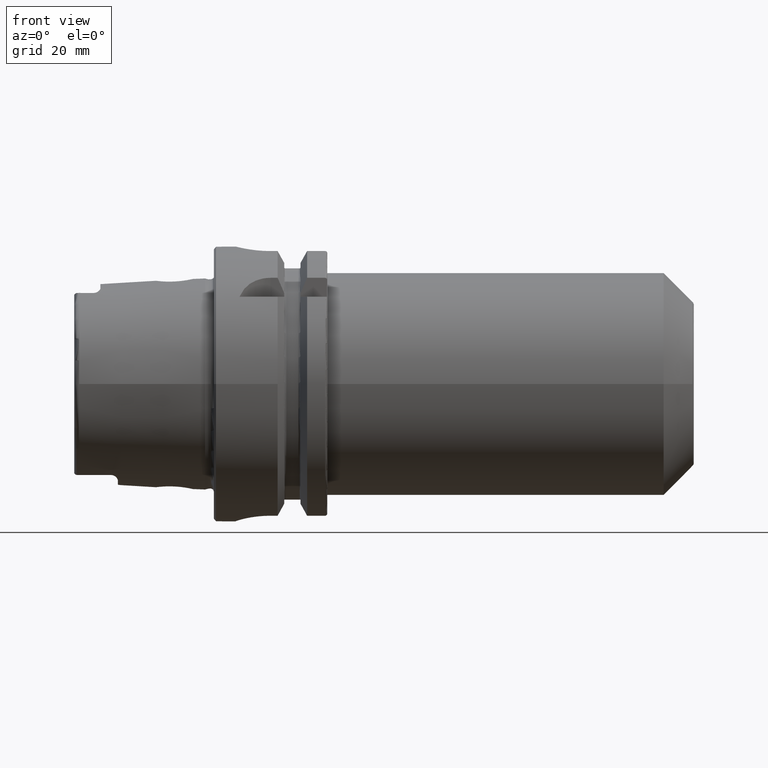
[diagram: clean part render]
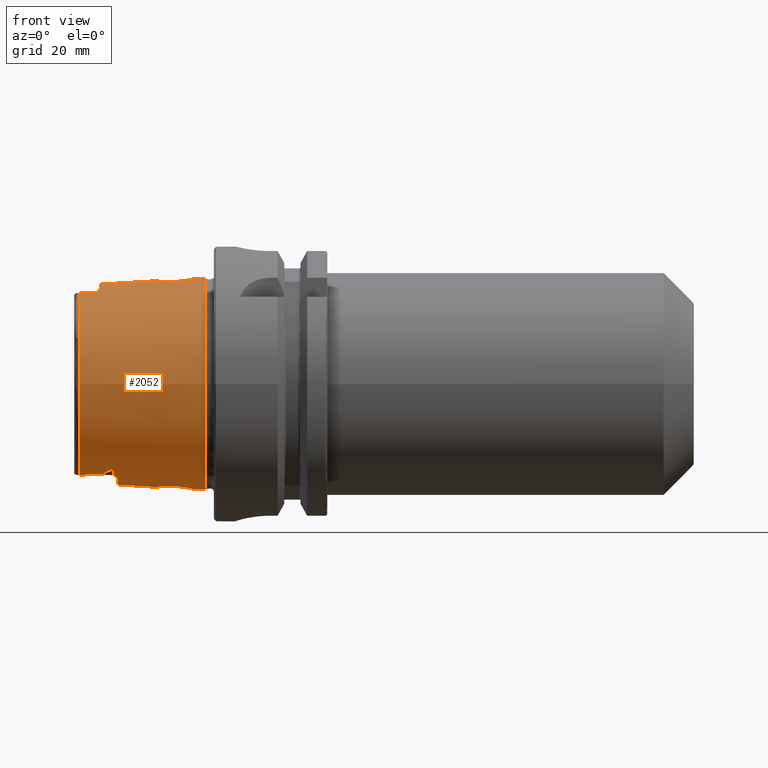
[diagram: same view with one face highlighted and labeled with its STEP entity id]
A machine part, front view. The second image highlights one B-rep face of the part: STEP entity #2052.
In plain terms, the highlighted conical surface has half-angle 2.868 deg.
Its self-contained STEP definition (entity closure, byte-faithful):
#15=(
BOUNDED_CURVE()
B_SPLINE_CURVE(2,(#3880,#3881,#3882),.UNSPECIFIED.,.F.,.F.)
B_SPLINE_CURVE_WITH_KNOTS((3,3),(0.409626932432081,0.704053423593105),
 .UNSPECIFIED.)
CURVE()
GEOMETRIC_REPRESENTATION_ITEM()
RATIONAL_B_SPLINE_CURVE((1.00336468859939,1.00336468859939,1.00162640098087))
REPRESENTATION_ITEM('')
);
#16=(
BOUNDED_CURVE()
B_SPLINE_CURVE(2,(#3947,#3948,#3949),.UNSPECIFIED.,.F.,.F.)
B_SPLINE_CURVE_WITH_KNOTS((3,3),(0.115200441271059,0.409626932432082),
 .UNSPECIFIED.)
CURVE()
GEOMETRIC_REPRESENTATION_ITEM()
RATIONAL_B_SPLINE_CURVE((1.00162640098087,1.00336468859939,1.00336468859939))
REPRESENTATION_ITEM('')
);
#102=FACE_BOUND('',#388,.T.);
#103=FACE_BOUND('',#389,.T.);
#118=B_SPLINE_CURVE_WITH_KNOTS('',3,(#3566,#3567,#3568,#3569,#3570,#3571,
#3572,#3573,#3574,#3575,#3576,#3577,#3578,#3579,#3580,#3581,#3582,#3583),
 .UNSPECIFIED.,.F.,.F.,(4,2,2,2,2,2,2,2,4),(0.937345209538582,1.02529838322405,
1.19618144709472,1.36706451096539,1.42680307053412,1.48654163010284,1.50096970945234,
1.50818374912708,1.51539778880183),.UNSPECIFIED.);
#121=B_SPLINE_CURVE_WITH_KNOTS('',3,(#3634,#3635,#3636,#3637,#3638,#3639,
#3640,#3641,#3642,#3643,#3644,#3645,#3646,#3647,#3648,#3649,#3650,#3651),
 .UNSPECIFIED.,.F.,.F.,(4,2,2,2,2,2,2,2,4),(1.51539778880184,1.52261182847659,
1.52982586815134,1.54425394750083,1.60399250706955,1.66373106663827,1.83461413050895,
2.00549719437962,2.0934503680651),.UNSPECIFIED.);
#123=B_SPLINE_CURVE_WITH_KNOTS('',3,(#3689,#3690,#3691,#3692,#3693,#3694,
#3695,#3696),.UNSPECIFIED.,.F.,.F.,(4,2,2,4),(1.77153596711132,1.83492838643131,
2.00584149209106,2.09371558288111),.UNSPECIFIED.);
#124=B_SPLINE_CURVE_WITH_KNOTS('',3,(#3713,#3714,#3715,#3716,#3717,#3718,
#3719,#3720),.UNSPECIFIED.,.F.,.F.,(4,2,2,4),(0.937604543168422,1.02547863395848,
1.19639173961822,1.25978415893822),.UNSPECIFIED.);
#128=B_SPLINE_CURVE_WITH_KNOTS('',3,(#3852,#3853,#3854,#3855,#3856,#3857,
#3858,#3859,#3860,#3861,#3862,#3863,#3864,#3865,#3866,#3867,#3868,#3869,
#3870,#3871,#3872),.UNSPECIFIED.,.T.,.F.,(4,1,1,1,1,1,1,1,1,1,1,1,1,1,1,
1,1,1,4),(-2.26557970640445,-2.10375258451842,-1.94192546263239,-1.86101190168937,
-1.78009834074636,-1.61827121886032,-1.45644409697429,-1.37553053603127,
-1.29461697508826,-1.18673222716424,-1.07884747924022,-0.970962731316194,
-0.863077983392173,-0.755193235468151,-0.647308487544129,-0.485481365658097,
-0.323654243772065,-0.161827121886032,0.),.UNSPECIFIED.);
#129=B_SPLINE_CURVE_WITH_KNOTS('',3,(#3884,#3885,#3886,#3887,#3888,#3889,
#3890,#3891,#3892,#3893,#3894,#3895,#3896,#3897,#3898,#3899,#3900,#3901),
 .UNSPECIFIED.,.F.,.F.,(4,2,2,2,2,2,2,2,4),(0.,0.0903555875079969,0.135533381261995,
0.180711175015994,0.191679253692351,0.19716329303053,0.202647332368709,
0.208141673454593,0.210684760739668),.UNSPECIFIED.);
#130=B_SPLINE_CURVE_WITH_KNOTS('',3,(#3903,#3904,#3905,#3906,#3907,#3908,
#3909,#3910,#3911,#3912),.UNSPECIFIED.,.F.,.F.,(4,2,2,2,4),(0.278659319230644,
0.333918541832918,0.442805459609059,0.482035165304725,0.500954004489182),
 .UNSPECIFIED.);
#131=B_SPLINE_CURVE_WITH_KNOTS('',3,(#3916,#3917,#3918,#3919,#3920,#3921,
#3922,#3923,#3924,#3925,#3926,#3927),.UNSPECIFIED.,.F.,.F.,(4,2,2,2,2,4),
(0.500954004487676,0.50386398744684,0.528331134037123,0.580812359186529,
0.712749669755937,0.726249722962502),.UNSPECIFIED.);
#132=B_SPLINE_CURVE_WITH_KNOTS('',3,(#3929,#3930,#3931,#3932,#3933,#3934,
#3935,#3936,#3937,#3938,#3939,#3940,#3941,#3942,#3943,#3944,#3945,#3946),
 .UNSPECIFIED.,.F.,.F.,(4,2,2,2,2,2,2,2,4),(0.599581967500703,0.602125054785784,
0.607619395871668,0.613103435209847,0.618587474548027,0.629555553224386,
0.674733346978385,0.719911140732385,0.810266728240384),.UNSPECIFIED.);
#133=B_SPLINE_CURVE_WITH_KNOTS('',3,(#3952,#3953,#3954,#3955,#3956,#3957,
#3958,#3959,#3960,#3961,#3962,#3963,#3964,#3965),.UNSPECIFIED.,.F.,.F.,
(4,2,2,2,2,2,4),(0.612787130114313,0.692070205833102,0.846913877835571,
0.923866042650838,0.97973233720279,1.02631946127952,1.05465853457734),
 .UNSPECIFIED.);
#134=B_SPLINE_CURVE_WITH_KNOTS('',3,(#3968,#3969,#3970,#3971,#3972,#3973,
#3974,#3975,#3976,#3977,#3978,#3979,#3980,#3981),.UNSPECIFIED.,.F.,.F.,
(4,2,2,2,2,2,4),(0.413162960284885,0.443293122422243,0.485069563612126,
0.532728756474865,0.604908335246701,0.737193690325506,0.813919818316776),
 .UNSPECIFIED.);
#135=B_SPLINE_CURVE_WITH_KNOTS('',3,(#3984,#3985,#3986,#3987,#3988,#3989,
#3990,#3991,#3992,#3993,#3994,#3995,#3996,#3997,#3998,#3999,#4000,#4001,
#4002,#4003,#4004),.UNSPECIFIED.,.T.,.F.,(4,1,1,1,1,1,1,1,1,1,1,1,1,1,1,
1,1,1,4),(-2.26557970640445,-2.10375258451842,-1.94192546263239,-1.78009834074636,
-1.61827121886032,-1.45644409697429,-1.37553053603127,-1.29461697508826,
-1.18673222716424,-1.07884747924022,-1.0249051052782,-0.970962731316194,
-0.755193235468151,-0.647308487544129,-0.485481365658097,-0.404567804715081,
-0.323654243772065,-0.161827121886032,0.),.UNSPECIFIED.);
#257=FACE_OUTER_BOUND('',#387,.T.);
#387=EDGE_LOOP('',(#1499,#1500,#1501,#1502,#1503,#1504,#1505,#1506,#1507,
#1508,#1509,#1510,#1511,#1512,#1513,#1514,#1515,#1516,#1517,#1518));
#388=EDGE_LOOP('',(#1519));
#389=EDGE_LOOP('',(#1520));
#522=LINE('',#3877,#634);
#634=VECTOR('',#2577,23.4974838444284);
#734=CIRCLE('',#2228,24.2204308617234);
#735=CIRCLE('',#2229,22.7745368271334);
#736=CIRCLE('',#2230,23.2184268537074);
#737=CIRCLE('',#2231,22.7745368271334);
#738=CIRCLE('',#2232,23.0180260521042);
#739=CIRCLE('',#2233,22.7745368271334);
#862=VERTEX_POINT('',#3563);
#863=VERTEX_POINT('',#3565);
#873=VERTEX_POINT('',#3620);
#874=VERTEX_POINT('',#3633);
#884=VERTEX_POINT('',#3675);
#885=VERTEX_POINT('',#3688);
#891=VERTEX_POINT('',#3710);
#892=VERTEX_POINT('',#3712);
#895=VERTEX_POINT('',#3823);
#898=VERTEX_POINT('',#3874);
#899=VERTEX_POINT('',#3876);
#900=VERTEX_POINT('',#3879);
#901=VERTEX_POINT('',#3883);
#902=VERTEX_POINT('',#3902);
#903=VERTEX_POINT('',#3913);
#904=VERTEX_POINT('',#3915);
#905=VERTEX_POINT('',#3928);
#906=VERTEX_POINT('',#3951);
#907=VERTEX_POINT('',#3966);
#908=VERTEX_POINT('',#3983);
#1085=EDGE_CURVE('',#863,#862,#118,.T.);
#1099=EDGE_CURVE('',#874,#873,#121,.T.);
#1112=EDGE_CURVE('',#885,#884,#123,.T.);
#1120=EDGE_CURVE('',#892,#891,#124,.T.);
#1128=EDGE_CURVE('',#895,#895,#128,.T.);
#1129=EDGE_CURVE('',#898,#898,#734,.T.);
#1130=EDGE_CURVE('',#898,#899,#522,.T.);
#1131=EDGE_CURVE('',#899,#863,#735,.T.);
#1132=EDGE_CURVE('',#862,#900,#15,.T.);
#1133=EDGE_CURVE('',#901,#900,#129,.T.);
#1134=EDGE_CURVE('',#902,#901,#130,.T.);
#1135=EDGE_CURVE('',#902,#903,#736,.T.);
#1136=EDGE_CURVE('',#904,#903,#131,.T.);
#1137=EDGE_CURVE('',#905,#904,#132,.T.);
#1138=EDGE_CURVE('',#905,#874,#16,.T.);
#1139=EDGE_CURVE('',#873,#892,#737,.T.);
#1140=EDGE_CURVE('',#906,#891,#133,.T.);
#1141=EDGE_CURVE('',#906,#907,#738,.T.);
#1142=EDGE_CURVE('',#885,#907,#134,.T.);
#1143=EDGE_CURVE('',#884,#899,#739,.T.);
#1144=EDGE_CURVE('',#908,#908,#135,.T.);
#1499=ORIENTED_EDGE('',*,*,#1129,.F.);
#1500=ORIENTED_EDGE('',*,*,#1130,.T.);
#1501=ORIENTED_EDGE('',*,*,#1131,.T.);
#1502=ORIENTED_EDGE('',*,*,#1085,.T.);
#1503=ORIENTED_EDGE('',*,*,#1132,.T.);
#1504=ORIENTED_EDGE('',*,*,#1133,.F.);
#1505=ORIENTED_EDGE('',*,*,#1134,.F.);
#1506=ORIENTED_EDGE('',*,*,#1135,.T.);
#1507=ORIENTED_EDGE('',*,*,#1136,.F.);
#1508=ORIENTED_EDGE('',*,*,#1137,.F.);
#1509=ORIENTED_EDGE('',*,*,#1138,.T.);
#1510=ORIENTED_EDGE('',*,*,#1099,.T.);
#1511=ORIENTED_EDGE('',*,*,#1139,.T.);
#1512=ORIENTED_EDGE('',*,*,#1120,.T.);
#1513=ORIENTED_EDGE('',*,*,#1140,.F.);
#1514=ORIENTED_EDGE('',*,*,#1141,.T.);
#1515=ORIENTED_EDGE('',*,*,#1142,.F.);
#1516=ORIENTED_EDGE('',*,*,#1112,.T.);
#1517=ORIENTED_EDGE('',*,*,#1143,.T.);
#1518=ORIENTED_EDGE('',*,*,#1130,.F.);
#1519=ORIENTED_EDGE('',*,*,#1144,.F.);
#1520=ORIENTED_EDGE('',*,*,#1128,.F.);
#2009=CONICAL_SURFACE('',#2227,23.4974838444284,0.0500583457465973);
#2052=ADVANCED_FACE('',(#257,#102,#103),#2009,.T.);
#2227=AXIS2_PLACEMENT_3D('',#3873,#2573,#2574);
#2228=AXIS2_PLACEMENT_3D('',#3875,#2575,#2576);
#2229=AXIS2_PLACEMENT_3D('',#3878,#2578,#2579);
#2230=AXIS2_PLACEMENT_3D('',#3914,#2580,#2581);
#2231=AXIS2_PLACEMENT_3D('',#3950,#2582,#2583);
#2232=AXIS2_PLACEMENT_3D('',#3967,#2584,#2585);
#2233=AXIS2_PLACEMENT_3D('',#3982,#2586,#2587);
#2573=DIRECTION('center_axis',(1.,0.,0.));
#2574=DIRECTION('ref_axis',(0.,1.,0.));
#2575=DIRECTION('center_axis',(1.,0.,0.));
#2576=DIRECTION('ref_axis',(0.,0.,-1.));
#2577=DIRECTION('',(-0.998747342623037,0.0500374420151821,6.1278193201414E-18));
#2578=DIRECTION('center_axis',(1.,0.,0.));
#2579=DIRECTION('ref_axis',(0.,0.,-1.));
#2580=DIRECTION('center_axis',(1.,0.,0.));
#2581=DIRECTION('ref_axis',(0.,1.,0.));
#2582=DIRECTION('center_axis',(1.,0.,0.));
#2583=DIRECTION('ref_axis',(0.,0.,-1.));
#2584=DIRECTION('center_axis',(1.,0.,0.));
#2585=DIRECTION('ref_axis',(0.,1.,0.));
#2586=DIRECTION('center_axis',(1.,0.,0.));
#2587=DIRECTION('ref_axis',(0.,0.,-1.));
#3563=CARTESIAN_POINT('',(-25.0978148584663,-10.4556386714692,-20.5570425901345));
#3565=CARTESIAN_POINT('',(-30.8600449304182,-9.1175788960984,-20.8698175067219));
#3566=CARTESIAN_POINT('Ctrl Pts',(-30.8600449304182,-9.11757889609839,-20.8698175067219));
#3567=CARTESIAN_POINT('Ctrl Pts',(-30.5458909643235,-9.15590567779842,-20.8702489912062));
#3568=CARTESIAN_POINT('Ctrl Pts',(-30.2333885582947,-9.19553638844306,-20.8699331931734));
#3569=CARTESIAN_POINT('Ctrl Pts',(-29.3200764392134,-9.31683719872071,-20.8662835753638));
#3570=CARTESIAN_POINT('Ctrl Pts',(-28.7253632733503,-9.40260250516231,-20.8605355436413));
#3571=CARTESIAN_POINT('Ctrl Pts',(-27.5600080230793,-9.59491882494623,-20.8370744460606));
#3572=CARTESIAN_POINT('Ctrl Pts',(-26.9889879780948,-9.69930871486833,-20.8204848534175));
#3573=CARTESIAN_POINT('Ctrl Pts',(-26.243078447761,-9.87995363103469,-20.7763753921414));
#3574=CARTESIAN_POINT('Ctrl Pts',(-26.0321916389,-9.93536599911181,-20.7617058242075));
#3575=CARTESIAN_POINT('Ctrl Pts',(-25.6226314158803,-10.0671936374524,-20.7209199758996));
#3576=CARTESIAN_POINT('Ctrl Pts',(-25.4220827984544,-10.138547720478,-20.6974983203461));
#3577=CARTESIAN_POINT('Ctrl Pts',(-25.2208246412483,-10.2713306216733,-20.6428847988051));
#3578=CARTESIAN_POINT('Ctrl Pts',(-25.1803732229877,-10.3024924958121,-20.6296329719333));
#3579=CARTESIAN_POINT('Ctrl Pts',(-25.1342239230183,-10.3555186194877,-20.6056268137561));
#3580=CARTESIAN_POINT('Ctrl Pts',(-25.1212840412597,-10.3742534446523,-20.5969290505833));
#3581=CARTESIAN_POINT('Ctrl Pts',(-25.10307563401,-10.4135952575897,-20.5780886428205));
#3582=CARTESIAN_POINT('Ctrl Pts',(-25.0978148584663,-10.434204936409,-20.5679441285336));
#3583=CARTESIAN_POINT('Ctrl Pts',(-25.0978148584663,-10.4556386714692,-20.5570425901345));
#3620=CARTESIAN_POINT('',(-30.8600449304182,9.1175788960984,-20.8698175067219));
#3633=CARTESIAN_POINT('',(-25.0978148584663,10.4556386714692,-20.5570425901345));
#3634=CARTESIAN_POINT('Ctrl Pts',(-25.0978148584663,10.4556386714692,-20.5570425901345));
#3635=CARTESIAN_POINT('Ctrl Pts',(-25.0978148584663,10.434204936409,-20.5679441285336));
#3636=CARTESIAN_POINT('Ctrl Pts',(-25.1030756340098,10.4135952575897,-20.5780886428205));
#3637=CARTESIAN_POINT('Ctrl Pts',(-25.1212840412595,10.3742534446523,-20.5969290505833));
#3638=CARTESIAN_POINT('Ctrl Pts',(-25.1342239230183,10.3555186194877,-20.605626813756));
#3639=CARTESIAN_POINT('Ctrl Pts',(-25.1803732229877,10.3024924958122,-20.6296329719333));
#3640=CARTESIAN_POINT('Ctrl Pts',(-25.2208246412482,10.2713306216733,-20.6428847988051));
#3641=CARTESIAN_POINT('Ctrl Pts',(-25.4220827984543,10.138547720478,-20.6974983203461));
#3642=CARTESIAN_POINT('Ctrl Pts',(-25.6226314158802,10.0671936374525,-20.7209199758995));
#3643=CARTESIAN_POINT('Ctrl Pts',(-26.0321916388999,9.93536599911188,-20.7617058242075));
#3644=CARTESIAN_POINT('Ctrl Pts',(-26.2430784477608,9.8799536310347,-20.7763753921414));
#3645=CARTESIAN_POINT('Ctrl Pts',(-26.9889879780946,9.69930871486834,-20.8204848534175));
#3646=CARTESIAN_POINT('Ctrl Pts',(-27.5600080230791,9.59491882494626,-20.8370744460606));
#3647=CARTESIAN_POINT('Ctrl Pts',(-28.7253632733501,9.40260250516234,-20.8605355436413));
#3648=CARTESIAN_POINT('Ctrl Pts',(-29.3200764392133,9.31683719872073,-20.8662835753638));
#3649=CARTESIAN_POINT('Ctrl Pts',(-30.2333885582946,9.19553638844306,-20.8699331931734));
#3650=CARTESIAN_POINT('Ctrl Pts',(-30.5458909643235,9.15590567779843,-20.8702489912062));
#3651=CARTESIAN_POINT('Ctrl Pts',(-30.8600449304182,9.11757889609839,-20.8698175067219));
#3675=CARTESIAN_POINT('',(-30.8600449304182,-9.1175788960984,20.8698175067219));
#3688=CARTESIAN_POINT('',(-27.5000000000755,-9.61067758640857,20.8329168403914));
#3689=CARTESIAN_POINT('Ctrl Pts',(-27.500000000078,-9.61067758642201,20.8329168403892));
#3690=CARTESIAN_POINT('Ctrl Pts',(-27.7125737548958,-9.57148784129481,20.8392673030342));
#3691=CARTESIAN_POINT('Ctrl Pts',(-27.9270578144772,-9.53434241390281,20.8444654011212));
#3692=CARTESIAN_POINT('Ctrl Pts',(-28.7259960474271,-9.40250589525003,20.8605443506117));
#3693=CARTESIAN_POINT('Ctrl Pts',(-29.3208153495341,-9.3167323629879,20.8662898636256));
#3694=CARTESIAN_POINT('Ctrl Pts',(-30.2339565561897,-9.19546438357122,20.8699337533607));
#3695=CARTESIAN_POINT('Ctrl Pts',(-30.5461763429502,-9.15587086160794,20.8702485992441));
#3696=CARTESIAN_POINT('Ctrl Pts',(-30.8600449304182,-9.11757889609839,20.8698175067219));
#3710=CARTESIAN_POINT('',(-27.5000000000755,9.61067758640857,20.8329168403914));
#3712=CARTESIAN_POINT('',(-30.8600449304182,9.1175788960984,20.8698175067219));
#3713=CARTESIAN_POINT('Ctrl Pts',(-30.8600449304182,9.11757889609839,20.8698175067219));
#3714=CARTESIAN_POINT('Ctrl Pts',(-30.5461763429502,9.15587086160794,20.8702485992441));
#3715=CARTESIAN_POINT('Ctrl Pts',(-30.2339565561898,9.1954643835712,20.8699337533607));
#3716=CARTESIAN_POINT('Ctrl Pts',(-29.3208153495341,9.31673236298789,20.8662898636256));
#3717=CARTESIAN_POINT('Ctrl Pts',(-28.7259960474271,9.40250589525004,20.8605443506117));
#3718=CARTESIAN_POINT('Ctrl Pts',(-27.9270578144772,9.53434241390281,20.8444654011213));
#3719=CARTESIAN_POINT('Ctrl Pts',(-27.7125737548958,9.57148784129481,20.8392673030342));
#3720=CARTESIAN_POINT('Ctrl Pts',(-27.500000000078,9.61067758642201,20.8329168403892));
#3823=CARTESIAN_POINT('',(-9.02925407423461,4.24282684078987,-23.4881339907642));
#3852=CARTESIAN_POINT('Ctrl Pts',(-9.02925407423461,4.24282684078987,-23.4881339907642));
#3853=CARTESIAN_POINT('Ctrl Pts',(-8.41794937729802,4.24763962021184,-23.5183867686952));
#3854=CARTESIAN_POINT('Ctrl Pts',(-7.09719062335626,3.96214027152736,-23.6400391343347));
#3855=CARTESIAN_POINT('Ctrl Pts',(-5.85872384144614,2.97350456469995,-23.8514262488192));
#3856=CARTESIAN_POINT('Ctrl Pts',(-5.16063731756733,1.91003066646729,-23.9915936511341));
#3857=CARTESIAN_POINT('Ctrl Pts',(-4.71967908413408,0.667233683255142,-24.0892210412975));
#3858=CARTESIAN_POINT('Ctrl Pts',(-4.69487671176925,-0.887140287368457,
-24.0946920123011));
#3859=CARTESIAN_POINT('Ctrl Pts',(-5.41575081787389,-2.43754371827964,-23.9347651451498));
#3860=CARTESIAN_POINT('Ctrl Pts',(-6.27200380070453,-3.29839456985501,-23.7808774616528));
#3861=CARTESIAN_POINT('Ctrl Pts',(-7.16157899956841,-3.8911177348338,-23.6460473005722));
#3862=CARTESIAN_POINT('Ctrl Pts',(-8.32145673061719,-4.25090987526345,-23.5228217546797));
#3863=CARTESIAN_POINT('Ctrl Pts',(-9.55257943298201,-4.26858049401254,-23.456823819944));
#3864=CARTESIAN_POINT('Ctrl Pts',(-10.8313666496774,-3.90479981259957,-23.4573341216261));
#3865=CARTESIAN_POINT('Ctrl Pts',(-11.8961422246607,-3.1841113544275,-23.5146565929276));
#3866=CARTESIAN_POINT('Ctrl Pts',(-12.7003698798572,-2.21954630167764,-23.5891273633448));
#3867=CARTESIAN_POINT('Ctrl Pts',(-13.2855020445789,-0.774775065590821,
-23.6608303251767));
#3868=CARTESIAN_POINT('Ctrl Pts',(-13.2993151465013,0.893979362185892,-23.6627026291545));
#3869=CARTESIAN_POINT('Ctrl Pts',(-12.4532300975689,2.72994365265342,-23.5583564408809));
#3870=CARTESIAN_POINT('Ctrl Pts',(-10.9641321027099,3.91707089294868,-23.4490088113463));
#3871=CARTESIAN_POINT('Ctrl Pts',(-9.64055877117117,4.23801406136791,-23.4578812128331));
#3872=CARTESIAN_POINT('Ctrl Pts',(-9.02925407423461,4.24282684078988,-23.4881339907642));
#3873=CARTESIAN_POINT('Origin',(-16.4300224652091,0.,0.));
#3874=CARTESIAN_POINT('',(-2.,-24.2204308617234,-2.96614731287794E-15));
#3875=CARTESIAN_POINT('Origin',(-2.,0.,0.));
#3876=CARTESIAN_POINT('',(-30.8600449304182,-22.7745368271334,-2.78907636274124E-15));
#3877=CARTESIAN_POINT('',(-16.4300224652091,-23.4974838444284,-2.87761183780959E-15));
#3878=CARTESIAN_POINT('Origin',(-30.8600449304182,0.,0.));
#3879=CARTESIAN_POINT('',(-23.5,-12.1698923613067,-19.6851459107563));
#3880=CARTESIAN_POINT('Ctrl Pts',(-25.0978148584663,-10.4556386714692,-20.5570425901345));
#3881=CARTESIAN_POINT('Ctrl Pts',(-25.0978148584663,-11.3112805797553,-20.1218495128239));
#3882=CARTESIAN_POINT('Ctrl Pts',(-23.5,-12.1698923613067,-19.6851459107563));
#3883=CARTESIAN_POINT('',(-22.9409864229987,-10.5046262057925,-20.6533579718259));
#3884=CARTESIAN_POINT('Ctrl Pts',(-22.9409864229987,-10.5046262057925,-20.6533579718259));
#3885=CARTESIAN_POINT('Ctrl Pts',(-22.9409864229987,-10.7730829666602,-20.516816595398));
#3886=CARTESIAN_POINT('Ctrl Pts',(-22.9574206817668,-11.0623666606509,-20.3616089931375));
#3887=CARTESIAN_POINT('Ctrl Pts',(-23.0214299513488,-11.4761009466796,-20.1257517714531));
#3888=CARTESIAN_POINT('Ctrl Pts',(-23.0491283200772,-11.6099871059181,-20.0471312410654));
#3889=CARTESIAN_POINT('Ctrl Pts',(-23.1253497318037,-11.8635092488451,-19.8937049027563));
#3890=CARTESIAN_POINT('Ctrl Pts',(-23.1681553584466,-11.9845149642791,-19.8183788237048));
#3891=CARTESIAN_POINT('Ctrl Pts',(-23.2720205567489,-12.1145084587468,-19.7327054731899));
#3892=CARTESIAN_POINT('Ctrl Pts',(-23.2970638659452,-12.1405120406692,-19.7152346163683));
#3893=CARTESIAN_POINT('Ctrl Pts',(-23.340824213029,-12.1694983830269,-19.6947680043585));
#3894=CARTESIAN_POINT('Ctrl Pts',(-23.3564336502031,-12.1775072041959,-19.6888951705931));
#3895=CARTESIAN_POINT('Ctrl Pts',(-23.3894992563298,-12.1884299822762,-19.6801867490419));
#3896=CARTESIAN_POINT('Ctrl Pts',(-23.4069516148396,-12.191352087042,-19.6773469156348));
#3897=CARTESIAN_POINT('Ctrl Pts',(-23.4435003757557,-12.1903876993059,-19.675790353909));
#3898=CARTESIAN_POINT('Ctrl Pts',(-23.4609883159786,-12.1865341044229,-19.6771480362853));
#3899=CARTESIAN_POINT('Ctrl Pts',(-23.4852443648865,-12.1772664781571,-19.6814547071094));
#3900=CARTESIAN_POINT('Ctrl Pts',(-23.4927247382132,-12.1738018414638,-19.6831574869965));
#3901=CARTESIAN_POINT('Ctrl Pts',(-23.5,-12.1698923613067,-19.6851459107563));
#3902=CARTESIAN_POINT('',(-22.,-7.4031250016059,-22.0065691504051));
#3903=CARTESIAN_POINT('Ctrl Pts',(-22.,-7.4031250016064,-22.0065691504049));
#3904=CARTESIAN_POINT('Ctrl Pts',(-22.,-7.64154328791244,-21.9263639914758));
#3905=CARTESIAN_POINT('Ctrl Pts',(-22.0282316966018,-7.93106690411137,-21.8234540350138));
#3906=CARTESIAN_POINT('Ctrl Pts',(-22.2899989017396,-8.94727995671646,-21.421774019244));
#3907=CARTESIAN_POINT('Ctrl Pts',(-22.60775210997,-9.49253651928731,-21.1610368486918));
#3908=CARTESIAN_POINT('Ctrl Pts',(-22.8524785496019,-10.0580168739411,-20.8800894739587));
#3909=CARTESIAN_POINT('Ctrl Pts',(-22.8997008986804,-10.1907353571143,-20.8128334005565));
#3910=CARTESIAN_POINT('Ctrl Pts',(-22.9350020039233,-10.381785274935,-20.7158310407179));
#3911=CARTESIAN_POINT('Ctrl Pts',(-22.9409864229987,-10.4428555441716,-20.6847755123391));
#3912=CARTESIAN_POINT('Ctrl Pts',(-22.9409864229987,-10.5046262057925,-20.6533579718259));
#3913=CARTESIAN_POINT('',(-22.,7.4031250016059,-22.0065691504051));
#3914=CARTESIAN_POINT('Origin',(-22.,0.,0.));
#3915=CARTESIAN_POINT('',(-22.9409864229987,10.5046262057925,-20.6533579718259));
#3916=CARTESIAN_POINT('Ctrl Pts',(-22.9409864229987,10.5046262057925,-20.6533579718259));
#3917=CARTESIAN_POINT('Ctrl Pts',(-22.9409864229987,10.4951250111927,-20.6581904304467));
#3918=CARTESIAN_POINT('Ctrl Pts',(-22.9408450644905,10.4856070684351,-20.6630311043921));
#3919=CARTESIAN_POINT('Ctrl Pts',(-22.9381719760295,10.3958439048842,-20.7086800932502));
#3920=CARTESIAN_POINT('Ctrl Pts',(-22.9258072553349,10.3185989460598,-20.747952822378));
#3921=CARTESIAN_POINT('Ctrl Pts',(-22.8649803787077,10.0769327863764,-20.8704196245159));
#3922=CARTESIAN_POINT('Ctrl Pts',(-22.7887679321626,9.90306802919886,-20.9581178536208));
#3923=CARTESIAN_POINT('Ctrl Pts',(-22.4484945404157,9.18505116717875,-21.3075925571443));
#3924=CARTESIAN_POINT('Ctrl Pts',(-22.0746753976002,8.47121172659649,-21.631485700585));
#3925=CARTESIAN_POINT('Ctrl Pts',(-22.0031617045067,7.56447021316982,-21.9516456669287));
#3926=CARTESIAN_POINT('Ctrl Pts',(-22.,7.48262387019776,-21.9798253150689));
#3927=CARTESIAN_POINT('Ctrl Pts',(-22.,7.40312500160694,-22.0065691504047));
#3928=CARTESIAN_POINT('',(-23.5,12.1698923613067,-19.6851459107563));
#3929=CARTESIAN_POINT('Ctrl Pts',(-23.5,12.1698923613067,-19.6851459107563));
#3930=CARTESIAN_POINT('Ctrl Pts',(-23.4927247382132,12.1738018414639,-19.6831574869965));
#3931=CARTESIAN_POINT('Ctrl Pts',(-23.4852443648865,12.1772664781571,-19.6814547071094));
#3932=CARTESIAN_POINT('Ctrl Pts',(-23.4609883159786,12.1865341044229,-19.6771480362853));
#3933=CARTESIAN_POINT('Ctrl Pts',(-23.4435003757557,12.190387699306,-19.6757903539089));
#3934=CARTESIAN_POINT('Ctrl Pts',(-23.4069516148396,12.1913520870421,-19.6773469156348));
#3935=CARTESIAN_POINT('Ctrl Pts',(-23.3894992563298,12.1884299822762,-19.6801867490419));
#3936=CARTESIAN_POINT('Ctrl Pts',(-23.3564336502031,12.1775072041959,-19.688895170593));
#3937=CARTESIAN_POINT('Ctrl Pts',(-23.340824213029,12.169498383027,-19.6947680043585));
#3938=CARTESIAN_POINT('Ctrl Pts',(-23.2970638659452,12.1405120406693,-19.7152346163683));
#3939=CARTESIAN_POINT('Ctrl Pts',(-23.2720205567489,12.1145084587468,-19.7327054731899));
#3940=CARTESIAN_POINT('Ctrl Pts',(-23.1681553584466,11.9845149642791,-19.8183788237047));
#3941=CARTESIAN_POINT('Ctrl Pts',(-23.1253497318037,11.8635092488451,-19.8937049027563));
#3942=CARTESIAN_POINT('Ctrl Pts',(-23.0491283200772,11.6099871059182,-20.0471312410654));
#3943=CARTESIAN_POINT('Ctrl Pts',(-23.0214299513488,11.4761009466796,-20.1257517714531));
#3944=CARTESIAN_POINT('Ctrl Pts',(-22.9574206817668,11.0623666606509,-20.3616089931375));
#3945=CARTESIAN_POINT('Ctrl Pts',(-22.9409864229987,10.7730829666602,-20.516816595398));
#3946=CARTESIAN_POINT('Ctrl Pts',(-22.9409864229987,10.5046262057925,-20.6533579718259));
#3947=CARTESIAN_POINT('Ctrl Pts',(-23.5,12.1698923613067,-19.6851459107563));
#3948=CARTESIAN_POINT('Ctrl Pts',(-25.0978148584663,11.3112805797553,-20.1218495128239));
#3949=CARTESIAN_POINT('Ctrl Pts',(-25.0978148584662,10.4556386714692,-20.5570425901345));
#3950=CARTESIAN_POINT('Origin',(-30.8600449304182,0.,0.));
#3951=CARTESIAN_POINT('',(-26.,7.14127219004964,21.8822246319466));
#3952=CARTESIAN_POINT('Ctrl Pts',(-26.,7.14127219004961,21.8822246319466));
#3953=CARTESIAN_POINT('Ctrl Pts',(-26.,7.38735946023371,21.801913959314));
#3954=CARTESIAN_POINT('Ctrl Pts',(-26.033972788753,7.63482296419265,21.7146832850108));
#3955=CARTESIAN_POINT('Ctrl Pts',(-26.2194423861809,8.34889404999889,21.4446815988103));
#3956=CARTESIAN_POINT('Ctrl Pts',(-26.4428793547878,8.75952114583654,21.2645357982171));
#3957=CARTESIAN_POINT('Ctrl Pts',(-26.7590254549197,9.19092879202869,21.0625769757814));
#3958=CARTESIAN_POINT('Ctrl Pts',(-26.8729708291721,9.32104212441475,20.9987774802421));
#3959=CARTESIAN_POINT('Ctrl Pts',(-27.0716948778125,9.49280512119961,20.9106159819251));
#3960=CARTESIAN_POINT('Ctrl Pts',(-27.144806553738,9.53932652154805,20.8852782118319));
#3961=CARTESIAN_POINT('Ctrl Pts',(-27.2637975599135,9.59417850538166,20.8535668796639));
#3962=CARTESIAN_POINT('Ctrl Pts',(-27.322222387454,9.61219549867679,20.8420263003947));
#3963=CARTESIAN_POINT('Ctrl Pts',(-27.4236635149584,9.61988157707407,20.8328813745288));
#3964=CARTESIAN_POINT('Ctrl Pts',(-27.4617925463603,9.61772144927266,20.8317754247499));
#3965=CARTESIAN_POINT('Ctrl Pts',(-27.5000000000779,9.61067758642203,20.8329168403892));
#3966=CARTESIAN_POINT('',(-26.,-7.14127219004964,21.8822246319466));
#3967=CARTESIAN_POINT('Origin',(-26.,0.,0.));
#3968=CARTESIAN_POINT('Ctrl Pts',(-27.500000000078,-9.610677586422,20.8329168403892));
#3969=CARTESIAN_POINT('Ctrl Pts',(-27.4634308025005,-9.61741942308555,20.8318243662782));
#3970=CARTESIAN_POINT('Ctrl Pts',(-27.4260889661871,-9.61985292316152,20.8327607188551));
#3971=CARTESIAN_POINT('Ctrl Pts',(-27.3343377981765,-9.61339298685805,20.8408051456548));
#3972=CARTESIAN_POINT('Ctrl Pts',(-27.2828394544385,-9.59996378018902,20.8498476845684));
#3973=CARTESIAN_POINT('Ctrl Pts',(-27.1765640574038,-9.55615724159004,20.8758218933212));
#3974=CARTESIAN_POINT('Ctrl Pts',(-27.111584300389,-9.51976030908576,20.8961199655304));
#3975=CARTESIAN_POINT('Ctrl Pts',(-26.9153060284285,-9.36478934458731,20.9769473005223));
#3976=CARTESIAN_POINT('Ctrl Pts',(-26.7955937204007,-9.23492374831594,21.0413520243865));
#3977=CARTESIAN_POINT('Ctrl Pts',(-26.4809422997755,-8.82026009617074,21.2370375105362));
#3978=CARTESIAN_POINT('Ctrl Pts',(-26.2539798154924,-8.42841535117176,21.4117405279022));
#3979=CARTESIAN_POINT('Ctrl Pts',(-26.0395031937781,-7.68065048502185,21.6986739773255));
#3980=CARTESIAN_POINT('Ctrl Pts',(-26.,-7.40668123592282,21.7956082905937));
#3981=CARTESIAN_POINT('Ctrl Pts',(-26.,-7.14127219004964,21.8822246319466));
#3982=CARTESIAN_POINT('Origin',(-30.8600449304182,0.,0.));
#3983=CARTESIAN_POINT('',(-9.0292540742346,4.24282684078987,23.4881339907642));
#3984=CARTESIAN_POINT('Ctrl Pts',(-9.0292540742346,4.24282684078987,23.4881339907642));
#3985=CARTESIAN_POINT('Ctrl Pts',(-9.64055877117117,4.23801406136791,23.4578812128331));
#3986=CARTESIAN_POINT('Ctrl Pts',(-10.9638730702336,3.91798236438986,23.4489970857899));
#3987=CARTESIAN_POINT('Ctrl Pts',(-12.4525958595704,2.72863690378587,23.5583136537412));
#3988=CARTESIAN_POINT('Ctrl Pts',(-13.2979904921632,0.897590812051159,23.6626376623402));
#3989=CARTESIAN_POINT('Ctrl Pts',(-13.2815658701657,-0.98999302529681,23.6604426532769));
#3990=CARTESIAN_POINT('Ctrl Pts',(-12.5283174417603,-2.51201387505666,23.5683654759453));
#3991=CARTESIAN_POINT('Ctrl Pts',(-11.6444040622836,-3.36174194412279,23.50003047831));
#3992=CARTESIAN_POINT('Ctrl Pts',(-10.7212741834396,-3.93934579023148,23.4568699868312));
#3993=CARTESIAN_POINT('Ctrl Pts',(-9.5509992773888,-4.26722573729756,23.4569375771407));
#3994=CARTESIAN_POINT('Ctrl Pts',(-8.52867241778628,-4.25003876713782,23.5122547979276));
#3995=CARTESIAN_POINT('Ctrl Pts',(-7.68780586799832,-4.05338928451488,23.5899164151454));
#3996=CARTESIAN_POINT('Ctrl Pts',(-6.48553931138608,-3.55436322843895,23.7337139580667));
#3997=CARTESIAN_POINT('Ctrl Pts',(-5.4130820429913,-2.55345835746536,23.93595268899));
#3998=CARTESIAN_POINT('Ctrl Pts',(-4.69884914086794,-0.680968659887892,
24.0937023327386));
#3999=CARTESIAN_POINT('Ctrl Pts',(-4.71937382006398,0.664900361610849,24.08935727819));
#4000=CARTESIAN_POINT('Ctrl Pts',(-5.16062521092841,1.90899044718831,23.9916071295055));
#4001=CARTESIAN_POINT('Ctrl Pts',(-5.8586063866709,2.97237256239872,23.8514805565406));
#4002=CARTESIAN_POINT('Ctrl Pts',(-7.09720951544069,3.96193589367342,23.6400338901471));
#4003=CARTESIAN_POINT('Ctrl Pts',(-8.41794937729801,4.24763962021184,23.5183867686952));
#4004=CARTESIAN_POINT('Ctrl Pts',(-9.0292540742346,4.24282684078988,23.4881339907642));